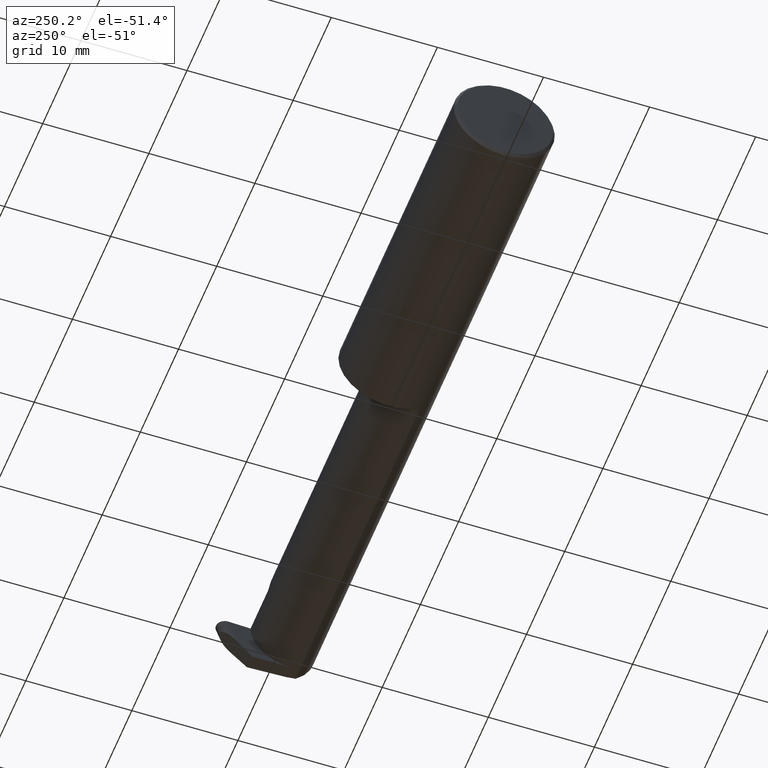
[diagram: clean part render]
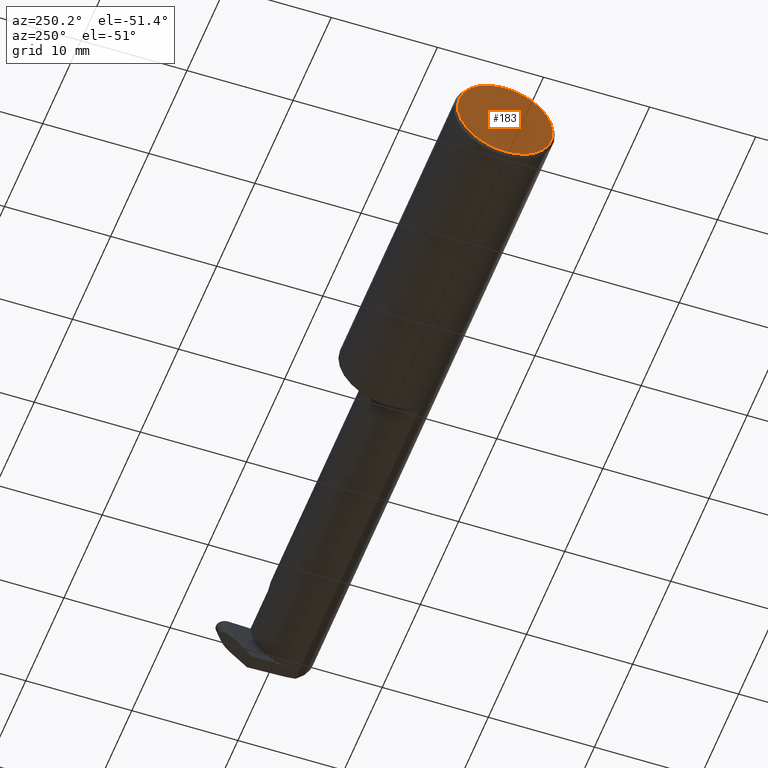
[diagram: same view with one face highlighted and labeled with its STEP entity id]
A machine part, auxiliary view. The second image highlights one B-rep face of the part: STEP entity #183.
In plain terms, the highlighted planar face has unit normal (1, 0, 0).
Its self-contained STEP definition (entity closure, byte-faithful):
#3 = DIRECTION ( 'NONE',  ( -1.000000000000000000, -0.000000000000000000, -0.000000000000000000 ) ) ;
#9 = CARTESIAN_POINT ( 'NONE',  ( 0.000000000000000000, 0.000000000000000000, 0.000000000000000000 ) ) ;
#37 = PLANE ( 'NONE',  #84 ) ;
#45 = ORIENTED_EDGE ( 'NONE', *, *, #708, .T. ) ;
#63 = CIRCLE ( 'NONE', #600, 0.1773499999999999521 ) ;
#84 = AXIS2_PLACEMENT_3D ( 'NONE', #131, #181, #617 ) ;
#96 = CIRCLE ( 'NONE', #564, 0.1773499999999999521 ) ;
#100 = EDGE_CURVE ( 'NONE', #124, #320, #559, .T. ) ;
#102 = DIRECTION ( 'NONE',  ( 0.000000000000000000, 0.000000000000000000, -1.000000000000000000 ) ) ;
#124 = VERTEX_POINT ( 'NONE', #573 ) ;
#131 = CARTESIAN_POINT ( 'NONE',  ( 0.000000000000000000, 0.000000000000000000, 0.000000000000000000 ) ) ;
#170 = CARTESIAN_POINT ( 'NONE',  ( 0.000000000000000000, 0.000000000000000000, 0.000000000000000000 ) ) ;
#181 = DIRECTION ( 'NONE',  ( 1.000000000000000000, 0.000000000000000000, 0.000000000000000000 ) ) ;
#183 = ADVANCED_FACE ( 'NONE', ( #679 ), #37, .F. ) ;
#227 = DIRECTION ( 'NONE',  ( 0.000000000000000000, 0.000000000000000000, -1.000000000000000000 ) ) ;
#282 = CARTESIAN_POINT ( 'NONE',  ( 0.000000000000000000, 0.000000000000000000, -0.1773499999999999521 ) ) ;
#320 = VERTEX_POINT ( 'NONE', #424 ) ;
#352 = DIRECTION ( 'NONE',  ( -0.000000000000000000, 1.000000000000000000, -0.000000000000000000 ) ) ;
#356 = ORIENTED_EDGE ( 'NONE', *, *, #516, .T. ) ;
#396 = CARTESIAN_POINT ( 'NONE',  ( 0.000000000000000000, 0.1873499999999998500, 0.1763499999999999235 ) ) ;
#424 = CARTESIAN_POINT ( 'NONE',  ( 0.000000000000000000, 0.01880691362238934988, 0.1763499999999999235 ) ) ;
#459 = VERTEX_POINT ( 'NONE', #282 ) ;
#468 = EDGE_LOOP ( 'NONE', ( #519, #356, #45 ) ) ;
#505 = VECTOR ( 'NONE', #352, 39.37007874015748143 ) ;
#516 = EDGE_CURVE ( 'NONE', #320, #459, #63, .T. ) ;
#519 = ORIENTED_EDGE ( 'NONE', *, *, #100, .T. ) ;
#559 = LINE ( 'NONE', #396, #505 ) ;
#564 = AXIS2_PLACEMENT_3D ( 'NONE', #170, #611, #227 ) ;
#573 = CARTESIAN_POINT ( 'NONE',  ( 0.000000000000000000, -0.01880691362238934641, 0.1763499999999999235 ) ) ;
#600 = AXIS2_PLACEMENT_3D ( 'NONE', #9, #3, #102 ) ;
#611 = DIRECTION ( 'NONE',  ( -1.000000000000000000, -0.000000000000000000, -0.000000000000000000 ) ) ;
#617 = DIRECTION ( 'NONE',  ( 0.000000000000000000, 0.000000000000000000, -1.000000000000000000 ) ) ;
#679 = FACE_OUTER_BOUND ( 'NONE', #468, .T. ) ;
#708 = EDGE_CURVE ( 'NONE', #459, #124, #96, .T. ) ;